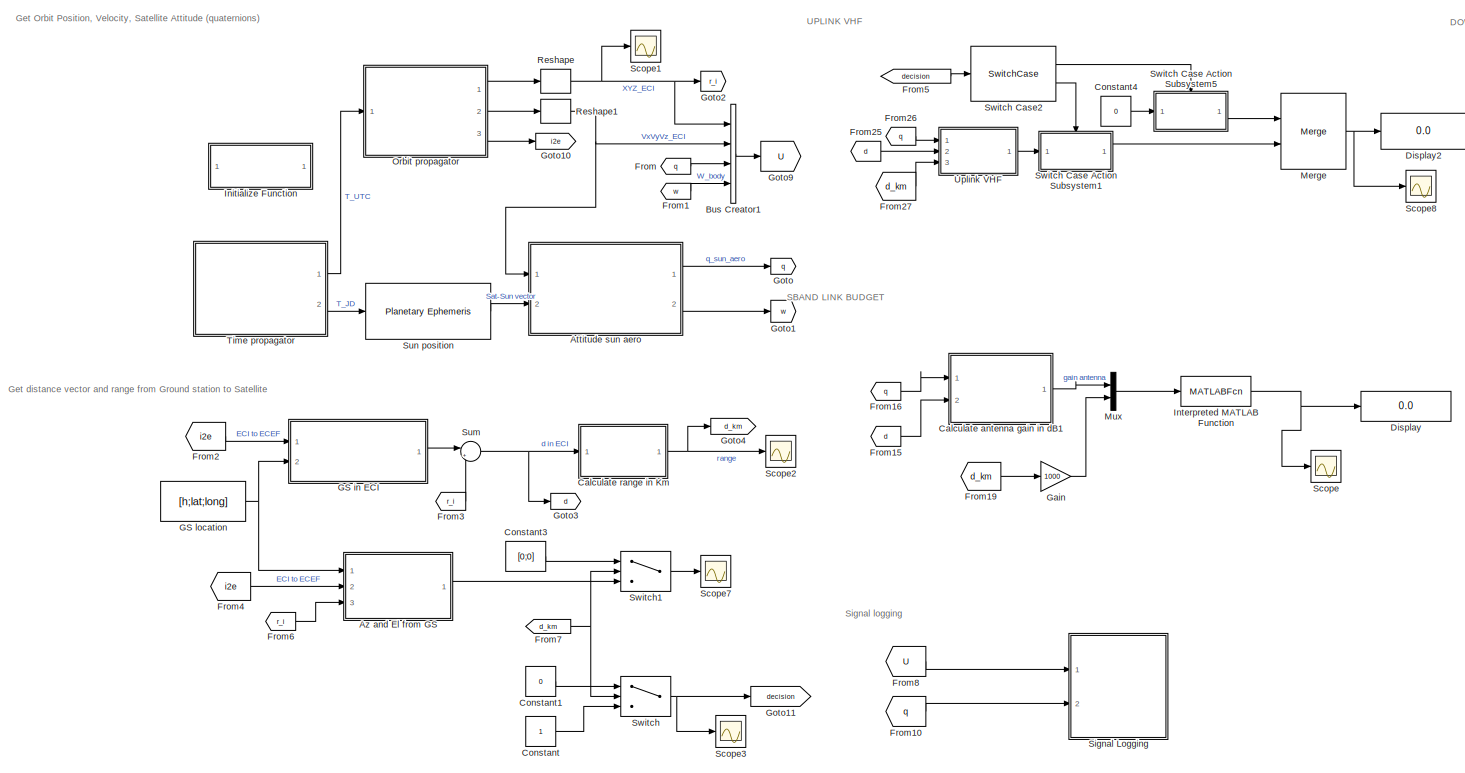
[diagram: root canvas - part 1/3, center side, full height]
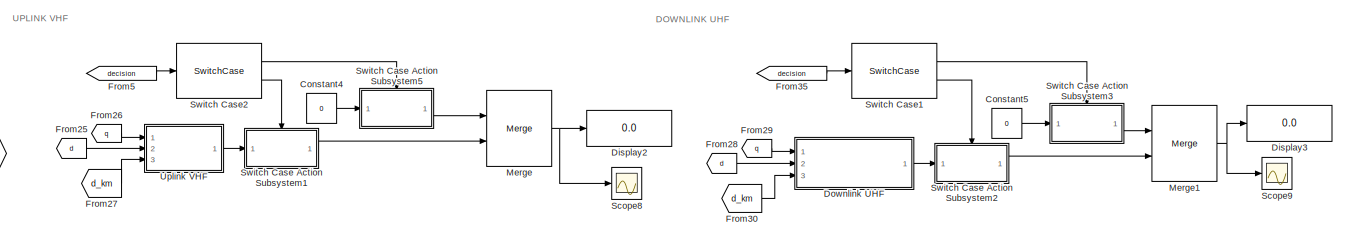
[diagram: root canvas - part 2/3, top right region]
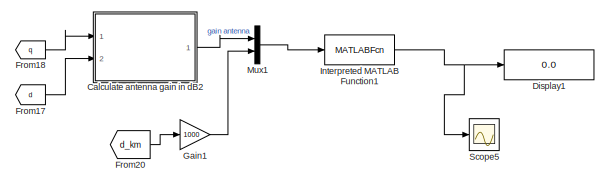
[diagram: root canvas - part 3/3, middle right region]
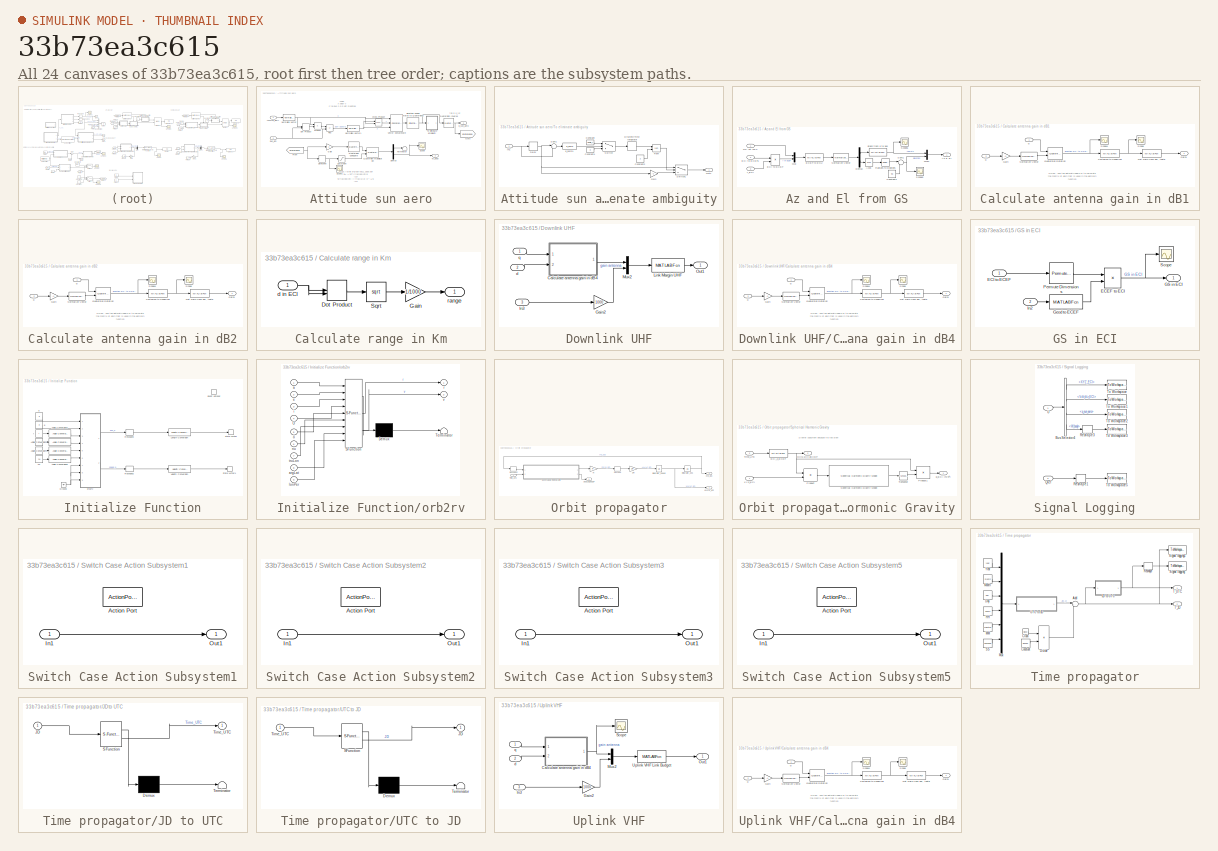
[diagram: thumbnail index - all 24 canvases of the model, root first then tree order]
MODEL slx_33b73ea3c615
KIND model
CONFIG AbsTol = auto
CONFIG EnableMultiTasking = off
CONFIG FixedStep = delta_t
CONFIG MaxStep = auto
CONFIG MinStep = auto
CONFIG RelTol = 1e-3
CONFIG SampleTimeConstraint = Unconstrained
CONFIG SolverName = FixedStepAuto
CONFIG StartTime = 0.0
CONFIG StopTime = tsimulation
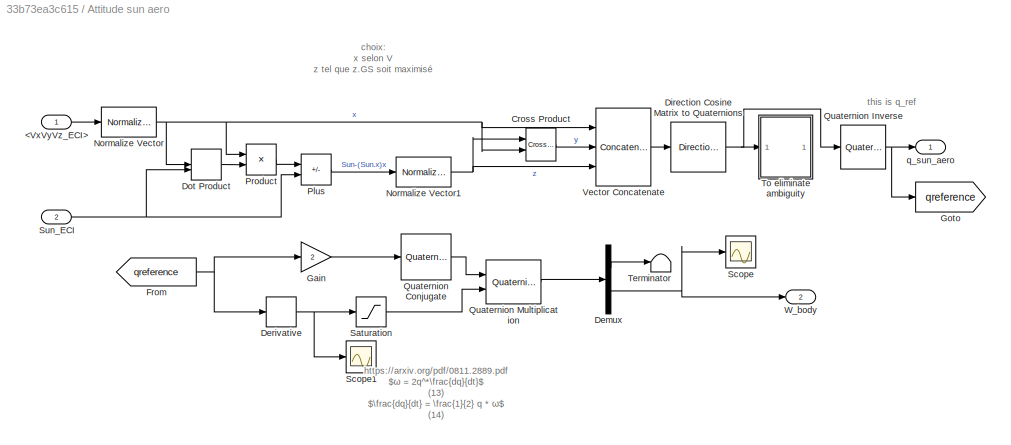
BLOCK [SubSystem] Attitude sun aero
  Ports = [2, 2]
  RequestExecContextInheritance = off
BLOCK [Inport] Attitude sun aero/<VxVyVz_ECI>
BLOCK [Reference] Attitude sun aero/Cross Product  REF=vrlib/Utilities/Cross Product
  Ports = [2, 1]
  SourceBlock = vrlib/Utilities/Cross Product
  SourceProductBaseCode = SL
  SourceType = Cross Product
BLOCK [Demux] Attitude sun aero/Demux
  Outputs = [1 3]
  Ports = [1, 2]
BLOCK [Derivative] Attitude sun aero/Derivative
BLOCK [Reference] Attitude sun aero/Direction Cosine Matrix to Quaternions  REF=sharedtransform/Direction Cosine Matrix 
to Quaternions
  Ports = [1, 1]
  SourceBlock = sharedtransform/Direction Cosine Matrix \nto Quaternions
  SourceProductBaseCode = AE,PW,DR,MT,UV,VE
  SourceType = DCM2Quaternion
BLOCK [DotProduct] Attitude sun aero/Dot Product
  OutDataTypeStr = Inherit: Inherit via internal rule
BLOCK [From] Attitude sun aero/From
  GotoTag = qreference
BLOCK [Gain] Attitude sun aero/Gain
  Gain = 2
BLOCK [Goto] Attitude sun aero/Goto
  GotoTag = qreference
BLOCK [Reference] Attitude sun aero/Normalize Vector  REF=vrlib/Utilities/Normalize Vector
  Ports = [1, 1]
  SourceBlock = vrlib/Utilities/Normalize Vector
  SourceProductBaseCode = SL
  SourceType = Normalize Vector
BLOCK [Reference] Attitude sun aero/Normalize Vector1  REF=vrlib/Utilities/Normalize Vector
  Ports = [1, 1]
  SourceBlock = vrlib/Utilities/Normalize Vector
  SourceProductBaseCode = SL
  SourceType = Normalize Vector
BLOCK [Sum] Attitude sun aero/Plus
  IconShape = rectangular
  Inputs = -+
  Ports = [2, 1]
BLOCK [Product] Attitude sun aero/Product
  Ports = [2, 1]
BLOCK [Reference] Attitude sun aero/Quaternion Conjugate  REF=aerolibutil/Quaternion
Conjugate
  Ports = [1, 1]
  SourceBlock = aerolibutil/Quaternion\nConjugate
  SourceProductBaseCode = AE
  SourceType = Quaternion Conjugate
BLOCK [Reference] Attitude sun aero/Quaternion Inverse  REF=aerolibutil/Quaternion
Inverse
  Ports = [1, 1]
  SourceBlock = aerolibutil/Quaternion\nInverse
  SourceProductBaseCode = AE
  SourceType = Quaternion Inverse
BLOCK [Reference] Attitude sun aero/Quaternion Multiplication  REF=aerolibutil/Quaternion
Multiplication
  Ports = [2, 1]
  SourceBlock = aerolibutil/Quaternion\nMultiplication
  SourceProductBaseCode = AE
  SourceType = Quaternion Multiplication
BLOCK [Saturate] Attitude sun aero/Saturation
  LowerLimit = -5.5e-4
  UpperLimit = 5.5e-4
BLOCK [Scope] Attitude sun aero/Scope
  Floating = off
  NumInputPorts = 1
  Ports = [1]
  ScopeSpecificationString = Simulink.scopes.TimeScopeBlockCfg('CurrentConfiguration', extmgr.ConfigurationSet(extmgr.Configuration('Core','General UI',true),extmgr.Configuration('Core','Source UI',true),extmgr.Configuration('Sources','WiredSimulink',true,'DataLoggingVariableName','ScopeData2'),extmgr.Configuration('Visuals','Time Domain',true,'SerializedDisplays',{struct('MinYLimReal','-0.0013','MaxYLimReal','0.00048','YLabe...<+1556ch>
BLOCK [Scope] Attitude sun aero/Scope1
  Floating = off
  NumInputPorts = 1
  Ports = [1]
  ScopeSpecificationString = Simulink.scopes.TimeScopeBlockCfg('CurrentConfiguration', extmgr.ConfigurationSet(extmgr.Configuration('Core','General UI',true),extmgr.Configuration('Core','Source UI',true),extmgr.Configuration('Sources','WiredSimulink',true,'DataLoggingVariableName','ScopeData2'),extmgr.Configuration('Visuals','Time Domain',true,'SerializedDisplays',{struct('MinYLimReal','-0.00053','MaxYLimReal','-0.00035','YLa...<+1586ch>
BLOCK [Inport] Attitude sun aero/Sun_ECI
  Port = 2
BLOCK [Terminator] Attitude sun aero/Terminator
BLOCK [SubSystem] Attitude sun aero/To eliminate ambiguity
  Commented = through
  Ports = [1, 1]
  RequestExecContextInheritance = off
BLOCK [Constant] Attitude sun aero/To eliminate ambiguity/Constant
  Value = 1/delta_t
BLOCK [Constant] Attitude sun aero/To eliminate ambiguity/Constant1
  Value = 0
BLOCK [Constant] Attitude sun aero/To eliminate ambiguity/Constant2
  Value = 2
BLOCK [Delay] Attitude sun aero/To eliminate ambiguity/Delay
  DelayLength = 1
  InputPortMap = u0
  Ports = [1, 1]
BLOCK [DiscreteIntegrator] Attitude sun aero/To eliminate ambiguity/Discrete-Time Integrator
  ICPrevOutput = DiscIntNeverNeededParam
  ICPrevScaledInput = DiscIntNeverNeededParam
  InitialConditionSetting = Auto
  Ports = [1, 1]
  SampleTime = -1
BLOCK [Gain] Attitude sun aero/To eliminate ambiguity/Gain
  Gain = -1
BLOCK [Inport] Attitude sun aero/To eliminate ambiguity/In1
BLOCK [Outport] Attitude sun aero/To eliminate ambiguity/Out1
BLOCK [Math] Attitude sun aero/To eliminate ambiguity/Rem
  Operator = rem
  Ports = [2, 1]
BLOCK [Sum] Attitude sun aero/To eliminate ambiguity/Sum1
  Inputs = |+-
  Ports = [2, 1]
BLOCK [Switch] Attitude sun aero/To eliminate ambiguity/Switch
  Criteria = u2 > Threshold
  InputSameDT = off
  SaturateOnIntegerOverflow = off
  Threshold = 1
BLOCK [Switch] Attitude sun aero/To eliminate ambiguity/Switch1
  Criteria = u2 > Threshold
  InputSameDT = off
  SaturateOnIntegerOverflow = off
  Threshold = 0.5
BLOCK [Reference] Attitude sun aero/To eliminate ambiguity/q_norm1  REF=My_library/q_norm
  Ports = [1, 1]
  SourceBlock = My_library/q_norm
  SourceProductName = My Library
BLOCK [Concatenate] Attitude sun aero/Vector Concatenate
  ConcatenateDimension = 2
  Mode = Multidimensional array
  NumInputs = 3
  Ports = [3, 1]
BLOCK [Outport] Attitude sun aero/W_body
  Port = 2
  VectorParamsAs1DForOutWhenUnconnected = off
BLOCK [Outport] Attitude sun aero/q_sun_aero
  VectorParamsAs1DForOutWhenUnconnected = off
BLOCK [SubSystem] Az and El from GS
  Ports = [3, 1]
  RequestExecContextInheritance = off
BLOCK [Trigonometry] Az and El from GS/Acos
  Operator = acos
  Ports = [1, 1]
BLOCK [Outport] Az and El from GS/Az & El
BLOCK [Constant] Az and El from GS/Constant2
  Value = 90
BLOCK [Demux] Az and El from GS/Demux
  Outputs = [2,1]
  Ports = [1, 2]
BLOCK [MATLABFcn] Az and El from GS/ECEF to ENU
  MATLABFcn = ecef_2_enu
  Output1D = off
  OutputDimensions = [3;1]
  Ports = [1, 1]
BLOCK [Product] Az and El from GS/ECI to ECEF
  Multiplication = Matrix(*)
  Ports = [2, 1]
BLOCK [Inport] Az and El from GS/ECI to ECEF1
  Port = 2
BLOCK [Inport] Az and El from GS/GS lat lon h
BLOCK [Mux] Az and El from GS/Mux
  DisplayOption = bar
  Inputs = 2
  Ports = [2, 1]
BLOCK [Mux] Az and El from GS/Mux1
  DisplayOption = bar
  Inputs = 2
  Ports = [2, 1]
BLOCK [Reference] Az and El from GS/Normalize Vector  REF=vrlib/Utilities/Normalize Vector
  Ports = [1, 1]
  SourceBlock = vrlib/Utilities/Normalize Vector
  SourceProductBaseCode = SL
  SourceType = Normalize Vector
BLOCK [Reference] Az and El from GS/Radians to Degrees  REF=simulink_extras/Transformations/Radians
to Degrees
  Ports = [1, 1]
  SourceBlock = simulink_extras/Transformations/Radians\nto Degrees
  SourceProductBaseCode = SL
  SourceType = RadiansToDegrees
BLOCK [Scope] Az and El from GS/Scope5
  Floating = off
  NumInputPorts = 1
  Ports = [1]
  ScopeSpecificationString = Simulink.scopes.TimeScopeBlockCfg('CurrentConfiguration', extmgr.ConfigurationSet(extmgr.Configuration('Core','General UI',true),extmgr.Configuration('Core','Source UI',true),extmgr.Configuration('Sources','WiredSimulink',true,'DataLoggingVariableName','ScopeData2'),extmgr.Configuration('Visuals','Time Domain',true,'SerializedDisplays',{struct('MinYLimReal','-104.6368','MaxYLimReal','45.61838','YL...<+1399ch>
BLOCK [Scope] Az and El from GS/Scope6
  Floating = off
  NumInputPorts = 1
  Ports = [1]
  ScopeSpecificationString = Simulink.scopes.TimeScopeBlockCfg('CurrentConfiguration', extmgr.ConfigurationSet(extmgr.Configuration('Core','General UI',true),extmgr.Configuration('Core','Source UI',true),extmgr.Configuration('Sources','WiredSimulink',true,'DataLoggingVariableName','ScopeData3'),extmgr.Configuration('Visuals','Time Domain',true,'SerializedDisplays',{struct('MinYLimReal','-44.99717','MaxYLimReal','404.99668','Y...<+1399ch>
BLOCK [Sum] Az and El from GS/Sum1
  Inputs = |-+
  Ports = [2, 1]
BLOCK [MATLABFcn] Az and El from GS/atan2 from 0 to 360
  MATLABFcn = atan2a
  NameLocation = top
  Ports = [1, 1]
BLOCK [Inport] Az and El from GS/r_ECI
  Port = 3
BLOCK [BusCreator] Bus Creator1
  DisplayOption = bar
  InheritFromInputs = on
  Inputs = 4
  Ports = [4, 1]
BLOCK [SubSystem] Calculate antenna gain in dB1
  Ports = [2, 1]
  RequestExecContextInheritance = off
BLOCK [MATLABFcn] Calculate antenna gain in dB1/Cartesian to Spherical
  MATLABFcn = cart2spherical
  Ports = [1, 1]
BLOCK [Gain] Calculate antenna gain in dB1/Gain
  Gain = -1
BLOCK [Outport] Calculate antenna gain in dB1/Gain1
BLOCK [MATLABFcn] Calculate antenna gain in dB1/Get Gain from phi, theta
  MATLABFcn = getGainvhf
  Ports = [1, 1]
BLOCK [Reference] Calculate antenna gain in dB1/Normalize Vector  REF=vrlib/Utilities/Normalize Vector
  Ports = [1, 1]
  SourceBlock = vrlib/Utilities/Normalize Vector
  SourceProductBaseCode = SL
  SourceType = Normalize Vector
BLOCK [Reference] Calculate antenna gain in dB1/Quaternion Rotation  REF=aerolibutil/Quaternion
Rotation
  Ports = [2, 1]
  SourceBlock = aerolibutil/Quaternion\nRotation
  SourceProductBaseCode = AE
  SourceType = Quaternion Rotation
BLOCK [Scope] Calculate antenna gain in dB1/Scope
  Floating = off
  NumInputPorts = 1
  Ports = [1]
  ScopeSpecificationString = Simulink.scopes.TimeScopeBlockCfg('CurrentConfiguration', extmgr.ConfigurationSet(extmgr.Configuration('Core','General UI',true),extmgr.Configuration('Core','Source UI',true),extmgr.Configuration('Sources','WiredSimulink',true,'DataLoggingVariableName','ScopeData1'),extmgr.Configuration('Visuals','Time Domain',true,'SerializedDisplays',{struct('MinYLimReal','-44.99179','MaxYLimReal','404.99208','Y...<+1490ch>  <repeated x3 — deduplicated; at blocks: Scope>
BLOCK [Scope] Calculate antenna gain in dB1/Scope4
  Floating = off
  NumInputPorts = 1
  Ports = [1]
  ScopeSpecificationString = Simulink.scopes.TimeScopeBlockCfg('CurrentConfiguration', extmgr.ConfigurationSet(extmgr.Configuration('Core','General UI',true),extmgr.Configuration('Core','Source UI',true),extmgr.Configuration('Sources','WiredSimulink',true,'DataLoggingVariableName','ScopeData1'),extmgr.Configuration('Visuals','Time Domain',true,'SerializedDisplays',{struct('MinYLimReal','-1.20919','MaxYLimReal','1.2419','YLabe...<+1689ch>  <repeated x4 — deduplicated; at blocks: Scope4>
BLOCK [Inport] Calculate antenna gain in dB1/d
  Port = 2
BLOCK [Inport] Calculate antenna gain in dB1/q
BLOCK [SubSystem] Calculate antenna gain in dB2
  Ports = [2, 1]
  RequestExecContextInheritance = off
BLOCK [MATLABFcn] Calculate antenna gain in dB2/Cartesian to Spherical
  MATLABFcn = cart2spherical
  Ports = [1, 1]
BLOCK [Gain] Calculate antenna gain in dB2/Gain
  Gain = -1
BLOCK [Outport] Calculate antenna gain in dB2/Gain1
BLOCK [MATLABFcn] Calculate antenna gain in dB2/Get Gain from phi, theta
  MATLABFcn = getGainuhf
  Ports = [1, 1]
BLOCK [Reference] Calculate antenna gain in dB2/Normalize Vector  REF=vrlib/Utilities/Normalize Vector
  Ports = [1, 1]
  SourceBlock = vrlib/Utilities/Normalize Vector
  SourceProductBaseCode = SL
  SourceType = Normalize Vector
BLOCK [Reference] Calculate antenna gain in dB2/Quaternion Rotation  REF=aerolibutil/Quaternion
Rotation
  Ports = [2, 1]
  SourceBlock = aerolibutil/Quaternion\nRotation
  SourceProductBaseCode = AE
  SourceType = Quaternion Rotation
BLOCK [Scope] Calculate antenna gain in dB2/Scope
  Floating = off
  NumInputPorts = 1
  Ports = [1]
BLOCK [Scope] Calculate antenna gain in dB2/Scope4
  Floating = off
  NumInputPorts = 1
  Ports = [1]
BLOCK [Inport] Calculate antenna gain in dB2/d
  Port = 2
BLOCK [Inport] Calculate antenna gain in dB2/q
BLOCK [SubSystem] Calculate range in Km
  Ports = [1, 1]
  RequestExecContextInheritance = off
BLOCK [DotProduct] Calculate range in Km/Dot Product
  OutDataTypeStr = Inherit: Inherit via internal rule
BLOCK [Gain] Calculate range in Km/Gain
  Gain = 1/1000
BLOCK [Sqrt] Calculate range in Km/Sqrt
BLOCK [Inport] Calculate range in Km/d in ECI
BLOCK [Outport] Calculate range in Km/range
BLOCK [Constant] Constant
BLOCK [Constant] Constant1
  Value = 0
BLOCK [Constant] Constant3
  Value = [0;0]
BLOCK [Constant] Constant4
  Value = 0
BLOCK [Constant] Constant5
  Value = 0
BLOCK [Display] Display
  Decimation = 1
  Ports = [1]
BLOCK [Display] Display1
  Decimation = 1
  Ports = [1]
BLOCK [Display] Display2
  Decimation = 1
  Ports = [1]
BLOCK [Display] Display3
  Decimation = 1
  Ports = [1]
BLOCK [SubSystem] Downlink UHF
  Ports = [3, 1]
  RequestExecContextInheritance = off
BLOCK [SubSystem] Downlink UHF/Calculate antenna gain in dB4
  Ports = [2, 1]
  RequestExecContextInheritance = off
BLOCK [MATLABFcn] Downlink UHF/Calculate antenna gain in dB4/Cartesian to Spherical
  MATLABFcn = cart2spherical
  Ports = [1, 1]
BLOCK [Gain] Downlink UHF/Calculate antenna gain in dB4/Gain
  Gain = -1
BLOCK [Outport] Downlink UHF/Calculate antenna gain in dB4/Gain1
BLOCK [MATLABFcn] Downlink UHF/Calculate antenna gain in dB4/Get Gain from phi, theta
  MATLABFcn = getGainuhf
  Ports = [1, 1]
BLOCK [Reference] Downlink UHF/Calculate antenna gain in dB4/Normalize Vector  REF=vrlib/Utilities/Normalize Vector
  Ports = [1, 1]
  SourceBlock = vrlib/Utilities/Normalize Vector
  SourceProductBaseCode = SL
  SourceType = Normalize Vector
BLOCK [Reference] Downlink UHF/Calculate antenna gain in dB4/Quaternion Rotation  REF=aerolibutil/Quaternion
Rotation
  Ports = [2, 1]
  SourceBlock = aerolibutil/Quaternion\nRotation
  SourceProductBaseCode = AE
  SourceType = Quaternion Rotation
BLOCK [Scope] Downlink UHF/Calculate antenna gain in dB4/Scope
  Floating = off
  NumInputPorts = 1
  Ports = [1]
BLOCK [Scope] Downlink UHF/Calculate antenna gain in dB4/Scope4
  Floating = off
  NumInputPorts = 1
  Ports = [1]
BLOCK [Inport] Downlink UHF/Calculate antenna gain in dB4/d
  Port = 2
BLOCK [Inport] Downlink UHF/Calculate antenna gain in dB4/q
BLOCK [Gain] Downlink UHF/Gain2
  Gain = 1000
BLOCK [Inport] Downlink UHF/In3
  Port = 3
BLOCK [MATLABFcn] Downlink UHF/Link Margin UHF
  MATLABFcn = linkbudgetdownlinkuhf
  OutputDimensions = 1
  Ports = [1, 1]
BLOCK [Mux] Downlink UHF/Mux2
  DisplayOption = bar
  Inputs = 2
  Ports = [2, 1]
BLOCK [Outport] Downlink UHF/Out1
BLOCK [Inport] Downlink UHF/d
  Port = 2
BLOCK [Inport] Downlink UHF/q
BLOCK [From] From
  GotoTag = q
BLOCK [From] From1
  GotoTag = w
BLOCK [From] From10
  GotoTag = q
BLOCK [From] From15
  GotoTag = d
BLOCK [From] From16
  GotoTag = q
BLOCK [From] From17
  GotoTag = d
BLOCK [From] From18
  GotoTag = q
BLOCK [From] From19
  GotoTag = d_km
BLOCK [From] From2
  GotoTag = i2e
BLOCK [From] From20
  GotoTag = d_km
BLOCK [From] From25
  GotoTag = d
BLOCK [From] From26
  GotoTag = q
BLOCK [From] From27
  GotoTag = d_km
BLOCK [From] From28
  GotoTag = d
BLOCK [From] From29
  GotoTag = q
BLOCK [From] From3
  GotoTag = r_i
BLOCK [From] From30
  GotoTag = d_km
BLOCK [From] From35
  GotoTag = decision
BLOCK [From] From4
  GotoTag = i2e
BLOCK [From] From5
  GotoTag = decision
BLOCK [From] From6
  GotoTag = r_i
BLOCK [From] From7
  GotoTag = d_km
BLOCK [From] From8
  GotoTag = U
BLOCK [SubSystem] GS in ECI
  Ports = [2, 1]
  RequestExecContextInheritance = off
BLOCK [Product] GS in ECI/ECEF to ECI
  Multiplication = Matrix(*)
  Ports = [2, 1]
BLOCK [Inport] GS in ECI/ECI to ECEF
BLOCK [Outport] GS in ECI/GS in ECI
BLOCK [MATLABFcn] GS in ECI/Geod to ECEF
  MATLABFcn = geod_2_ecef
  Output1D = off
  OutputDimensions = [3;1]
  Ports = [1, 1]
BLOCK [Inport] GS in ECI/In2
  Port = 2
BLOCK [PermuteDimensions] GS in ECI/Permute Dimensions
BLOCK [Scope] GS in ECI/Scope
  Floating = off
  NumInputPorts = 1
  Ports = [1]
  ScopeSpecificationString = Simulink.scopes.TimeScopeBlockCfg('CurrentConfiguration', extmgr.ConfigurationSet(extmgr.Configuration('Core','General UI',true),extmgr.Configuration('Core','Source UI',true),extmgr.Configuration('Sources','WiredSimulink',true,'DataLoggingVariableName','ScopeData1'),extmgr.Configuration('Visuals','Time Domain',true,'SerializedDisplays',{struct('MinYLimReal','-5751689.17563','MaxYLimReal','5501459....<+1494ch>
BLOCK [Constant] GS location
  Value = [h;lat;long]
BLOCK [Gain] Gain
  Gain = 1000
BLOCK [Gain] Gain1
  Gain = 1000
BLOCK [Goto] Goto
  GotoTag = q
BLOCK [Goto] Goto1
  GotoTag = w
BLOCK [Goto] Goto10
  GotoTag = i2e
BLOCK [Goto] Goto11
  GotoTag = decision
BLOCK [Goto] Goto2
  GotoTag = r_i
BLOCK [Goto] Goto3
  GotoTag = d
BLOCK [Goto] Goto4
  GotoTag = d_km
BLOCK [Goto] Goto9
  GotoTag = U
BLOCK [SubSystem] Initialize Function
  Ports = []
  RequestExecContextInheritance = off
  TreatAsAtomicUnit = on
BLOCK [Reference] Initialize Function/Angle Conversion2  REF=aerolibconvert2/Angle Conversion
  Ports = [1, 1]
  SourceBlock = aerolibconvert2/Angle Conversion
  SourceProductBaseCode = AE
  SourceType = Angle Conversion
BLOCK [Reference] Initialize Function/Angle Conversion3  REF=aerolibconvert2/Angle Conversion
  Ports = [1, 1]
  SourceBlock = aerolibconvert2/Angle Conversion
  SourceProductBaseCode = AE
  SourceType = Angle Conversion
BLOCK [Reference] Initialize Function/Angle Conversion4  REF=aerolibconvert2/Angle Conversion
  Ports = [1, 1]
  SourceBlock = aerolibconvert2/Angle Conversion
  SourceProductBaseCode = AE
  SourceType = Angle Conversion
BLOCK [Reference] Initialize Function/Angle Conversion5  REF=aerolibconvert2/Angle Conversion
  Ports = [1, 1]
  SourceBlock = aerolibconvert2/Angle Conversion
  SourceProductBaseCode = AE
  SourceType = Angle Conversion
BLOCK [EventListener] Initialize Function/Event Listener
  DisableCoverage = on
  EventName = reset
BLOCK [Ground] Initialize Function/Ground
BLOCK [Reference] Initialize Function/Length Conversion  REF=aerolibconvert2/Length Conversion
  Ports = [1, 1]
  SourceBlock = aerolibconvert2/Length Conversion
  SourceProductBaseCode = AE
  SourceType = Length Conversion
BLOCK [Constant] Initialize Function/O
  Value = O
BLOCK [Reshape] Initialize Function/Reshape2
  OutputDimensionality = Column vector (2-D)
  Ports = [1, 1]
BLOCK [Reshape] Initialize Function/Reshape3
  OutputDimensionality = Column vector (2-D)
  Ports = [1, 1]
BLOCK [StateWriter] Initialize Function/State Writer
  StateOwnerBlock = ../../Orbit propagator/Integrator_pos
BLOCK [StateWriter] Initialize Function/State Writer1
  StateOwnerBlock = ../../Orbit propagator/Integrator_speed
BLOCK [Reference] Initialize Function/Velocity Conversion  REF=aerolibconvert2/Velocity Conversion
  Ports = [1, 1]
  SourceBlock = aerolibconvert2/Velocity Conversion
  SourceProductBaseCode = AE
  SourceType = Velocity Conversion
BLOCK [Constant] Initialize Function/a
  Value = a
BLOCK [Constant] Initialize Function/e
  Value = e
BLOCK [Constant] Initialize Function/i
  Value = i
BLOCK [Constant] Initialize Function/nu
  Value = nu
BLOCK [Constant] Initialize Function/o
  Value = o
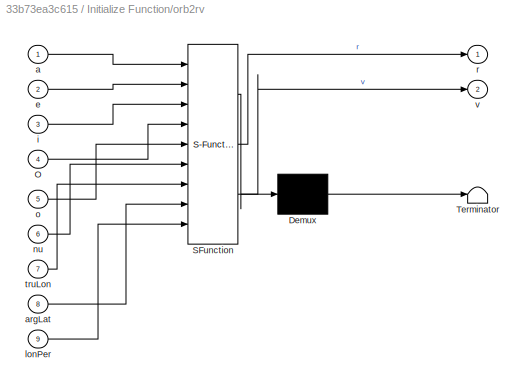
BLOCK [SubSystem] Initialize Function/orb2rv
  ErrorFcn = Stateflow.Translate.translate
  PermitHierarchicalResolution = ExplicitOnly
  Ports = [9, 2]
  RequestExecContextInheritance = off
  SFBlockType = MATLAB Function
  TreatAsAtomicUnit = on
BLOCK [Demux] Initialize Function/orb2rv/ Demux 
  Outputs = 1
  Ports = [1, 1]
BLOCK [S-Function] Initialize Function/orb2rv/ SFunction 
  EnableBusSupport = on
  FunctionName = sf_sfun
  PortCounts = [9 3]
  Ports = [9, 3]
  SFcnIsStateOwnerBlock = off
  SFunctionDeploymentMode = off
  Tag = Stateflow S-Function 5
BLOCK [Terminator] Initialize Function/orb2rv/ Terminator 
BLOCK [Inport] Initialize Function/orb2rv/O
  Port = 4
BLOCK [Inport] Initialize Function/orb2rv/a
BLOCK [Inport] Initialize Function/orb2rv/argLat
  Port = 8
BLOCK [Inport] Initialize Function/orb2rv/e
  Port = 2
BLOCK [Inport] Initialize Function/orb2rv/i
  Port = 3
BLOCK [Inport] Initialize Function/orb2rv/lonPer
  Port = 9
BLOCK [Inport] Initialize Function/orb2rv/nu
  Port = 6
BLOCK [Inport] Initialize Function/orb2rv/o
  Port = 5
BLOCK [Outport] Initialize Function/orb2rv/r
  VectorParamsAs1DForOutWhenUnconnected = off
BLOCK [Inport] Initialize Function/orb2rv/truLon
  Port = 7
BLOCK [Outport] Initialize Function/orb2rv/v
  Port = 2
  VectorParamsAs1DForOutWhenUnconnected = off
BLOCK [MATLABFcn] Interpreted MATLAB Function
  MATLABFcn = linkbudgetuplinksband
  OutputDimensions = 1
  Ports = [1, 1]
BLOCK [MATLABFcn] Interpreted MATLAB Function1
  MATLABFcn = linkbudgetdownlinksband
  OutputDimensions = 1
  Ports = [1, 1]
BLOCK [Merge] Merge
  Ports = [2, 1]
BLOCK [Merge] Merge1
  Ports = [2, 1]
BLOCK [Mux] Mux
  DisplayOption = bar
  Inputs = 2
  Ports = [2, 1]
BLOCK [Mux] Mux1
  DisplayOption = bar
  Inputs = 2
  Ports = [2, 1]
BLOCK [SubSystem] Orbit propagator
  Ports = [1, 3]
  RequestExecContextInheritance = off
BLOCK [Gain] Orbit propagator/1//m
  Gain = 1/m
BLOCK [Outport] Orbit propagator/DCM_ECI2ECEF
  Port = 3
BLOCK [Integrator] Orbit propagator/Integrator_pos
  Ports = [1, 1]
BLOCK [Integrator] Orbit propagator/Integrator_speed
  Ports = [1, 1]
BLOCK [Reshape] Orbit propagator/Reshape
  OutputDimensionality = Column vector (2-D)
  Ports = [1, 1]
BLOCK [Reshape] Orbit propagator/Reshape2
  OutputDimensionality = Column vector (2-D)
  Ports = [1, 1]
BLOCK [SubSystem] Orbit propagator/Spherical Harmonic Gravity
  Ports = [2, 2]
  RequestExecContextInheritance = off
  SystemSampleTime = 1
  TreatAsAtomicUnit = on
BLOCK [Outport] Orbit propagator/Spherical Harmonic Gravity/DCM_ECI2ECEF
  Port = 2
BLOCK [MATLABFcn] Orbit propagator/Spherical Harmonic Gravity/ECI_2_ECEF
  MATLABFcn = eci2ecef
  Output1D = off
  OutputDimensions = [3,3]
  Ports = [1, 1]
BLOCK [Product] Orbit propagator/Spherical Harmonic Gravity/Product
  Multiplication = Matrix(*)
  Ports = [2, 1]
BLOCK [Product] Orbit propagator/Spherical Harmonic Gravity/Product1
  Inputs = /*
  Multiplication = Matrix(*)
  Ports = [2, 1]
BLOCK [Reference] Orbit propagator/Spherical Harmonic Gravity/Spherical Harmonic Gravity Model  REF=aerolibgravity2/Spherical Harmonic Gravity Model
  Ports = [1, 1]
  SourceBlock = aerolibgravity2/Spherical Harmonic Gravity Model
  SourceProductBaseCode = AE
  SourceType = Spherical Harmonic Gravity Model
BLOCK [Inport] Orbit propagator/Spherical Harmonic Gravity/Time_UTC
  Port = 2
BLOCK [Math] Orbit propagator/Spherical Harmonic Gravity/Transpose
  Operator = transpose
  Ports = [1, 1]
  SignedPower = on
BLOCK [Inport] Orbit propagator/Spherical Harmonic Gravity/XYZ_ECI
BLOCK [Outport] Orbit propagator/Spherical Harmonic Gravity/g_ECI (m//s²)
BLOCK [Inport] Orbit propagator/Time_UTC 
BLOCK [Outport] Orbit propagator/VxVyVz_ECI
  Port = 2
BLOCK [Outport] Orbit propagator/XYZ_ECI
  VectorParamsAs1DForOutWhenUnconnected = off
BLOCK [Gain] Orbit propagator/m
  Gain = m
BLOCK [Reshape] Reshape
  Ports = [1, 1]
BLOCK [Reshape] Reshape1
  Ports = [1, 1]
BLOCK [Scope] Scope
  Floating = off
  NumInputPorts = 1
  Ports = [1]
  ScopeSpecificationString = Simulink.scopes.TimeScopeBlockCfg('CurrentConfiguration', extmgr.ConfigurationSet(extmgr.Configuration('Core','General UI',true),extmgr.Configuration('Core','Source UI',true),extmgr.Configuration('Sources','WiredSimulink',true,'DataLoggingVariableName','ScopeData1'),extmgr.Configuration('Visuals','Time Domain',true,'SerializedDisplays',{struct('MinYLimReal','-34.66174','MaxYLimReal','7.96637','YLa...<+1449ch>
BLOCK [Scope] Scope1
  Floating = off
  NumInputPorts = 1
  Ports = [1]
  ScopeSpecificationString = Simulink.scopes.TimeScopeBlockCfg('CurrentConfiguration', extmgr.ConfigurationSet(extmgr.Configuration('Core','General UI',true),extmgr.Configuration('Core','Source UI',true),extmgr.Configuration('Sources','WiredSimulink',true,'DataLoggingVariableName','ScopeData2'),extmgr.Configuration('Visuals','Time Domain',true,'SerializedDisplays',{struct('MinYLimReal','-7832359.43944','MaxYLimReal','7880788....<+1538ch>
BLOCK [Scope] Scope2
  Floating = off
  NumInputPorts = 1
  Ports = [1]
  ScopeSpecificationString = Simulink.scopes.TimeScopeBlockCfg('CurrentConfiguration', extmgr.ConfigurationSet(extmgr.Configuration('Core','General UI',true),extmgr.Configuration('Core','Source UI',true),extmgr.Configuration('Sources','WiredSimulink',true,'DataLoggingVariableName','ScopeData1'),extmgr.Configuration('Visuals','Time Domain',true,'SerializedDisplays',{struct('MinYLimReal','-907.22225','MaxYLimReal','14662.47484'...<+1495ch>
BLOCK [Scope] Scope3
  Floating = off
  NumInputPorts = 1
  Ports = [1]
  ScopeSpecificationString = Simulink.scopes.TimeScopeBlockCfg('CurrentConfiguration', extmgr.ConfigurationSet(extmgr.Configuration('Core','General UI',true),extmgr.Configuration('Core','Source UI',true),extmgr.Configuration('Sources','WiredSimulink',true,'DataLoggingVariableName','ScopeData1'),extmgr.Configuration('Visuals','Time Domain',true,'SerializedDisplays',{struct('MinYLimReal','-0.125','MaxYLimReal','1.125','YLabelRe...<+1459ch>
BLOCK [Scope] Scope5
  Floating = off
  NumInputPorts = 1
  Ports = [1]
  ScopeSpecificationString = Simulink.scopes.TimeScopeBlockCfg('CurrentConfiguration', extmgr.ConfigurationSet(extmgr.Configuration('Core','General UI',true),extmgr.Configuration('Core','Source UI',true),extmgr.Configuration('Sources','WiredSimulink',true,'DataLoggingVariableName','ScopeData3'),extmgr.Configuration('Visuals','Time Domain',true,'SerializedDisplays',{struct('MinYLimReal','-13.51241','MaxYLimReal','25.69699','YL...<+1448ch>
BLOCK [Scope] Scope7
  Floating = off
  NumInputPorts = 1
  Ports = [1]
  ScopeSpecificationString = Simulink.scopes.TimeScopeBlockCfg('CurrentConfiguration', extmgr.ConfigurationSet(extmgr.Configuration('Core','General UI',true),extmgr.Configuration('Core','Source UI',true),extmgr.Configuration('Sources','WiredSimulink',true,'DataLoggingVariableName','ScopeData4'),extmgr.Configuration('Visuals','Time Domain',true,'SerializedDisplays',{struct('MinYLimReal','-23.33113','MaxYLimReal','209.98021','Y...<+1556ch>
BLOCK [Scope] Scope8
  Floating = off
  NumInputPorts = 1
  Ports = [1]
  ScopeSpecificationString = Simulink.scopes.TimeScopeBlockCfg('CurrentConfiguration', extmgr.ConfigurationSet(extmgr.Configuration('Core','General UI',true),extmgr.Configuration('Core','Source UI',true),extmgr.Configuration('Sources','WiredSimulink',true,'DataLoggingVariableName','ScopeData1'),extmgr.Configuration('Visuals','Time Domain',true,'SerializedDisplays',{struct('MinYLimReal','-4.03066','MaxYLimReal','36.27598','YLa...<+1448ch>
BLOCK [Scope] Scope9
  Floating = off
  NumInputPorts = 1
  Ports = [1]
  ScopeSpecificationString = Simulink.scopes.TimeScopeBlockCfg('CurrentConfiguration', extmgr.ConfigurationSet(extmgr.Configuration('Core','General UI',true),extmgr.Configuration('Core','Source UI',true),extmgr.Configuration('Sources','WiredSimulink',true,'DataLoggingVariableName','ScopeData3'),extmgr.Configuration('Visuals','Time Domain',true,'SerializedDisplays',{struct('MinYLimReal','-5.65754','MaxYLimReal','50.91788','YLa...<+1433ch>
BLOCK [SubSystem] Signal Logging
  Ports = [2]
  RequestExecContextInheritance = off
BLOCK [BusSelector] Signal Logging/Bus Selector4
  OutputSignals = XYZ_ECI,VxVyVz_ECI,q_sun_aero,W_body
  Ports = [1, 4]
BLOCK [Inport] Signal Logging/Qref
  Port = 2
BLOCK [Reshape] Signal Logging/Reshape1
  Ports = [1, 1]
BLOCK [Reshape] Signal Logging/Reshape3
  Ports = [1, 1]
BLOCK [ToWorkspace] Signal Logging/To Workspace
  FixptAsFi = on
  MaxDataPoints = inf
  Ports = [1]
  SampleTime = 1
  Save2DSignal = 2-D array (concatenate along first dimension)
  SaveFormat = Timeseries
  VariableName = sat_pos
BLOCK [ToWorkspace] Signal Logging/To Workspace1
  FixptAsFi = on
  MaxDataPoints = inf
  Ports = [1]
  SampleTime = 1
  Save2DSignal = 2-D array (concatenate along first dimension)
  SaveFormat = Timeseries
  VariableName = sat_speed
BLOCK [ToWorkspace] Signal Logging/To Workspace2
  FixptAsFi = on
  MaxDataPoints = inf
  Ports = [1]
  SampleTime = 1
  Save2DSignal = 2-D array (concatenate along first dimension)
  SaveFormat = Timeseries
  VariableName = sat_Q
BLOCK [ToWorkspace] Signal Logging/To Workspace3
  FixptAsFi = on
  MaxDataPoints = inf
  Ports = [1]
  SampleTime = 1
  Save2DSignal = 2-D array (concatenate along first dimension)
  SaveFormat = Timeseries
  VariableName = sat_omega
BLOCK [ToWorkspace] Signal Logging/To Workspace5
  FixptAsFi = on
  MaxDataPoints = inf
  Ports = [1]
  SampleTime = 1
  Save2DSignal = 2-D array (concatenate along first dimension)
  SaveFormat = Timeseries
  VariableName = sat_Qc
BLOCK [Inport] Signal Logging/U
BLOCK [Sum] Sum
  Inputs = |+-
  Ports = [2, 1]
BLOCK [Reference] Sun position  REF=aerolibcelestial/Planetary Ephemeris
  Ports = [1, 1]
  SourceBlock = aerolibcelestial/Planetary Ephemeris
  SourceProductBaseCode = AE
  SourceType = PlanetaryEphemeris
BLOCK [Switch] Switch
  Criteria = u2 > Threshold
  InputSameDT = off
  SaturateOnIntegerOverflow = off
  Threshold = d_0
BLOCK [SubSystem] Switch Case Action Subsystem1
  Ports = [1, 1, 0, 0, 0, 0, 0, 1]
  RequestExecContextInheritance = off
  TreatAsAtomicUnit = on
BLOCK [ActionPort] Switch Case Action Subsystem1/Action Port
  ActionPortLabel = case [ 1 ]:
BLOCK [Inport] Switch Case Action Subsystem1/In1
BLOCK [Outport] Switch Case Action Subsystem1/Out1
  VectorParamsAs1DForOutWhenUnconnected = off
BLOCK [SubSystem] Switch Case Action Subsystem2
  Ports = [1, 1, 0, 0, 0, 0, 0, 1]
  RequestExecContextInheritance = off
  TreatAsAtomicUnit = on
BLOCK [ActionPort] Switch Case Action Subsystem2/Action Port
  ActionPortLabel = case [ 1 ]:
BLOCK [Inport] Switch Case Action Subsystem2/In1
BLOCK [Outport] Switch Case Action Subsystem2/Out1
  VectorParamsAs1DForOutWhenUnconnected = off
BLOCK [SubSystem] Switch Case Action Subsystem3
  Ports = [1, 1, 0, 0, 0, 0, 0, 1]
  RequestExecContextInheritance = off
  TreatAsAtomicUnit = on
BLOCK [ActionPort] Switch Case Action Subsystem3/Action Port
  ActionPortLabel = case [ 0 ]:
BLOCK [Inport] Switch Case Action Subsystem3/In1
BLOCK [Outport] Switch Case Action Subsystem3/Out1
  VectorParamsAs1DForOutWhenUnconnected = off
BLOCK [SubSystem] Switch Case Action Subsystem5
  Ports = [1, 1, 0, 0, 0, 0, 0, 1]
  RequestExecContextInheritance = off
  TreatAsAtomicUnit = on
BLOCK [ActionPort] Switch Case Action Subsystem5/Action Port
  ActionPortLabel = case [ 0 ]:
BLOCK [Inport] Switch Case Action Subsystem5/In1
BLOCK [Outport] Switch Case Action Subsystem5/Out1
  VectorParamsAs1DForOutWhenUnconnected = off
BLOCK [SwitchCase] Switch Case1
  CaseConditions = {0, 1}
  Ports = [1, 2]
  ShowDefaultCase = off
BLOCK [SwitchCase] Switch Case2
  CaseConditions = {0, 1}
  Ports = [1, 2]
  ShowDefaultCase = off
BLOCK [Switch] Switch1
  Criteria = u2 > Threshold
  InputSameDT = off
  SaturateOnIntegerOverflow = off
  Threshold = d_0
BLOCK [SubSystem] Time propagator
  Ports = [0, 2]
  RequestExecContextInheritance = off
BLOCK [Sum] Time propagator/Add
  Inputs = |++
  Ports = [2, 1]
BLOCK [Clock] Time propagator/Clock
BLOCK [Constant] Time propagator/Constant
  Value = 86400
BLOCK [Constant] Time propagator/Day
  Value = day
BLOCK [Product] Time propagator/Divide
  Inputs = */
  Ports = [2, 1]
BLOCK [Constant] Time propagator/HH
  Value = hours
BLOCK [SubSystem] Time propagator/JD to UTC
  ErrorFcn = Stateflow.Translate.translate
  PermitHierarchicalResolution = ExplicitOnly
  Ports = [1, 1]
  RequestExecContextInheritance = off
  SFBlockType = MATLAB Function
  TreatAsAtomicUnit = on
BLOCK [Demux] Time propagator/JD to UTC/ Demux 
  Outputs = 1
  Ports = [1, 1]
BLOCK [S-Function] Time propagator/JD to UTC/ SFunction 
  EnableBusSupport = on
  FunctionName = sf_sfun
  PortCounts = [1 2]
  Ports = [1, 2]
  SFcnIsStateOwnerBlock = off
  SFunctionDeploymentMode = off
  Tag = Stateflow S-Function 1
BLOCK [Terminator] Time propagator/JD to UTC/ Terminator 
BLOCK [Inport] Time propagator/JD to UTC/JD
BLOCK [Outport] Time propagator/JD to UTC/Time_UTC
  VectorParamsAs1DForOutWhenUnconnected = off
BLOCK [Constant] Time propagator/MM
  Value = minutes
BLOCK [Constant] Time propagator/Month
  Value = month
BLOCK [Mux] Time propagator/Mux
  DisplayOption = bar
  Inputs = 6
  Ports = [6, 1]
BLOCK [Reshape] Time propagator/Reshape
  Ports = [1, 1]
BLOCK [Constant] Time propagator/SS
  Value = seconds
BLOCK [ToWorkspace] Time propagator/Signal logging
  FixptAsFi = on
  MaxDataPoints = inf
  Ports = [1]
  SampleTime = 1
  Save2DSignal = 2-D array (concatenate along first dimension)
  SaveFormat = Timeseries
  VariableName = T_UTC
BLOCK [ToWorkspace] Time propagator/Signal logging1
  FixptAsFi = on
  MaxDataPoints = inf
  Ports = [1]
  SampleTime = 1
  Save2DSignal = 2-D array (concatenate along first dimension)
  SaveFormat = Timeseries
  VariableName = T_JD
BLOCK [Outport] Time propagator/T_JD
  Port = 2
  VectorParamsAs1DForOutWhenUnconnected = off
BLOCK [Outport] Time propagator/T_UTC
  VectorParamsAs1DForOutWhenUnconnected = off
BLOCK [SubSystem] Time propagator/UTC to JD
  ErrorFcn = Stateflow.Translate.translate
  PermitHierarchicalResolution = ExplicitOnly
  Ports = [1, 1]
  RequestExecContextInheritance = off
  SFBlockType = MATLAB Function
  TreatAsAtomicUnit = on
BLOCK [Demux] Time propagator/UTC to JD/ Demux 
  Outputs = 1
  Ports = [1, 1]
BLOCK [S-Function] Time propagator/UTC to JD/ SFunction 
  EnableBusSupport = on
  FunctionName = sf_sfun
  PortCounts = [1 2]
  Ports = [1, 2]
  SFcnIsStateOwnerBlock = off
  SFunctionDeploymentMode = off
  Tag = Stateflow S-Function 2
BLOCK [Terminator] Time propagator/UTC to JD/ Terminator 
BLOCK [Outport] Time propagator/UTC to JD/JD
  VectorParamsAs1DForOutWhenUnconnected = off
BLOCK [Inport] Time propagator/UTC to JD/Time_UTC
BLOCK [Constant] Time propagator/Year
  Value = year
BLOCK [SubSystem] Uplink VHF
  Ports = [3, 1]
  RequestExecContextInheritance = off
BLOCK [SubSystem] Uplink VHF/Calculate antenna gain in dB4
  Ports = [2, 1]
  RequestExecContextInheritance = off
BLOCK [MATLABFcn] Uplink VHF/Calculate antenna gain in dB4/Cartesian to Spherical
  MATLABFcn = cart2spherical
  Ports = [1, 1]
BLOCK [Gain] Uplink VHF/Calculate antenna gain in dB4/Gain
  Gain = -1
BLOCK [Outport] Uplink VHF/Calculate antenna gain in dB4/Gain1
BLOCK [MATLABFcn] Uplink VHF/Calculate antenna gain in dB4/Get Gain from phi, theta
  MATLABFcn = getGainvhf
  Ports = [1, 1]
BLOCK [Reference] Uplink VHF/Calculate antenna gain in dB4/Normalize Vector  REF=vrlib/Utilities/Normalize Vector
  Ports = [1, 1]
  SourceBlock = vrlib/Utilities/Normalize Vector
  SourceProductBaseCode = SL
  SourceType = Normalize Vector
BLOCK [Reference] Uplink VHF/Calculate antenna gain in dB4/Quaternion Rotation  REF=aerolibutil/Quaternion
Rotation
  Ports = [2, 1]
  SourceBlock = aerolibutil/Quaternion\nRotation
  SourceProductBaseCode = AE
  SourceType = Quaternion Rotation
BLOCK [Scope] Uplink VHF/Calculate antenna gain in dB4/Scope
  Floating = off
  NumInputPorts = 1
  Ports = [1]
  ScopeSpecificationString = Simulink.scopes.TimeScopeBlockCfg('CurrentConfiguration', extmgr.ConfigurationSet(extmgr.Configuration('Core','General UI',true),extmgr.Configuration('Core','Source UI',true),extmgr.Configuration('Sources','WiredSimulink',true,'DataLoggingVariableName','ScopeData1'),extmgr.Configuration('Visuals','Time Domain',true,'SerializedDisplays',{struct('MinYLimReal','-44.92966','MaxYLimReal','404.96275','Y...<+1501ch>
BLOCK [Scope] Uplink VHF/Calculate antenna gain in dB4/Scope4
  Floating = off
  NumInputPorts = 1
  Ports = [1]
BLOCK [Inport] Uplink VHF/Calculate antenna gain in dB4/d
  Port = 2
BLOCK [Inport] Uplink VHF/Calculate antenna gain in dB4/q
BLOCK [Gain] Uplink VHF/Gain2
  Gain = 1000
BLOCK [Inport] Uplink VHF/In3
  Port = 3
BLOCK [Mux] Uplink VHF/Mux2
  DisplayOption = bar
  Inputs = 2
  Ports = [2, 1]
BLOCK [Outport] Uplink VHF/Out1
BLOCK [Scope] Uplink VHF/Scope
  Floating = off
  NumInputPorts = 1
  Ports = [1]
  ScopeSpecificationString = Simulink.scopes.TimeScopeBlockCfg('CurrentConfiguration', extmgr.ConfigurationSet(extmgr.Configuration('Core','General UI',true),extmgr.Configuration('Core','Source UI',true),extmgr.Configuration('Sources','WiredSimulink',true,'DataLoggingVariableName','ScopeData2'),extmgr.Configuration('Visuals','Time Domain',true,'SerializedDisplays',{struct('MinYLimReal','-11.53338','MaxYLimReal','-2.05218','YL...<+1729ch>
BLOCK [MATLABFcn] Uplink VHF/Uplink VHF Link Budget
  MATLABFcn = linkbudgetuplinkvhf
  OutputDimensions = 1
  Ports = [1, 1]
BLOCK [Inport] Uplink VHF/d
  Port = 2
BLOCK [Inport] Uplink VHF/q
ANNOTATION (root): DOWNLINK UHF
ANNOTATION (root): Get Orbit Position, Velocity, Satellite Attitude (quaternions)
ANNOTATION (root): Get distance vector and range from Ground station to Satellite
ANNOTATION (root): SBAND LINK BUDGET
ANNOTATION (root): Signal logging
ANNOTATION (root): UPLINK VHF
ANNOTATION Attitude sun aero: choix : x selon V z tel que z.GS soit maximisé
ANNOTATION Attitude sun aero: https://arxiv.org/pdf/0811.2889.pdf $ω = 2q^*\frac{dq}{dt}$ (13) $\frac{dq}{dt} = \frac{1}{2} q * ω$ (14)
ANNOTATION Attitude sun aero: this is q_ref
ANNOTATION Calculate antenna gain in dB1: NOTE: use the getmatrixgain.m to calculate the matrix of gain that is used in the getGain function
ANNOTATION Calculate antenna gain in dB2: NOTE: use the getmatrixgain.m to calculate the matrix of gain that is used in the getGain function
ANNOTATION Downlink UHF/Calculate antenna gain in dB4: NOTE: use the getmatrixgain.m to calculate the matrix of gain that is used in the getGain function
ANNOTATION Orbit propagator/Spherical Harmonic Gravity: Slower subsytem because it's too slow
ANNOTATION Uplink VHF/Calculate antenna gain in dB4: NOTE: use the getmatrixgain.m to calculate the matrix of gain that is used in the getGain function
LINE Attitude sun aero/<VxVyVz_ECI>:1 -> Attitude sun aero/Normalize Vector:1
LINE Attitude sun aero/Cross Product:1 -> Attitude sun aero/Vector Concatenate:2
LINE Attitude sun aero/Demux:1 -> Attitude sun aero/Terminator:1
NET Attitude sun aero/Demux:2 -> Attitude sun aero/Scope:1, Attitude sun aero/W_body:1
NET Attitude sun aero/Derivative:1 -> Attitude sun aero/Saturation:1, Attitude sun aero/Scope1:1
NET Attitude sun aero/Direction Cosine Matrix to Quaternions:1 -> Attitude sun aero/Quaternion Inverse:1, Attitude sun aero/To eliminate ambiguity:1
LINE Attitude sun aero/Dot Product:1 -> Attitude sun aero/Product:2
NET Attitude sun aero/From:1 -> Attitude sun aero/Derivative:1, Attitude sun aero/Gain:1
LINE Attitude sun aero/Gain:1 -> Attitude sun aero/Quaternion Conjugate:1
NET Attitude sun aero/Normalize Vector1:1 -> Attitude sun aero/Cross Product:1, Attitude sun aero/Vector Concatenate:3
NET Attitude sun aero/Normalize Vector:1 -> Attitude sun aero/Cross Product:2, Attitude sun aero/Dot Product:1, Attitude sun aero/Product:1, Attitude sun aero/Vector Concatenate:1
LINE Attitude sun aero/Plus:1 -> Attitude sun aero/Normalize Vector1:1
LINE Attitude sun aero/Product:1 -> Attitude sun aero/Plus:1
LINE Attitude sun aero/Quaternion Conjugate:1 -> Attitude sun aero/Quaternion Multiplication:1
NET Attitude sun aero/Quaternion Inverse:1 -> Attitude sun aero/Goto:1, Attitude sun aero/q_sun_aero:1
LINE Attitude sun aero/Quaternion Multiplication:1 -> Attitude sun aero/Demux:1
LINE Attitude sun aero/Saturation:1 -> Attitude sun aero/Quaternion Multiplication:2
NET Attitude sun aero/Sun_ECI:1 -> Attitude sun aero/Dot Product:2, Attitude sun aero/Plus:2
LINE Attitude sun aero/To eliminate ambiguity/Constant1:1 -> Attitude sun aero/To eliminate ambiguity/Switch:3
LINE Attitude sun aero/To eliminate ambiguity/Constant2:1 -> Attitude sun aero/To eliminate ambiguity/Rem:2
LINE Attitude sun aero/To eliminate ambiguity/Constant:1 -> Attitude sun aero/To eliminate ambiguity/Switch:1
NET Attitude sun aero/To eliminate ambiguity/Delay:1 -> Attitude sun aero/To eliminate ambiguity/Gain:1, Attitude sun aero/To eliminate ambiguity/Sum1:1, Attitude sun aero/To eliminate ambiguity/Switch1:1
LINE Attitude sun aero/To eliminate ambiguity/Discrete-Time Integrator:1 -> Attitude sun aero/To eliminate ambiguity/Rem:1
LINE Attitude sun aero/To eliminate ambiguity/Gain:1 -> Attitude sun aero/To eliminate ambiguity/Switch1:3
NET Attitude sun aero/To eliminate ambiguity/In1:1 -> Attitude sun aero/To eliminate ambiguity/Delay:1, Attitude sun aero/To eliminate ambiguity/Sum1:2
LINE Attitude sun aero/To eliminate ambiguity/Rem:1 -> Attitude sun aero/To eliminate ambiguity/Switch1:2
LINE Attitude sun aero/To eliminate ambiguity/Sum1:1 -> Attitude sun aero/To eliminate ambiguity/q_norm1:1
LINE Attitude sun aero/To eliminate ambiguity/Switch1:1 -> Attitude sun aero/To eliminate ambiguity/Out1:1
LINE Attitude sun aero/To eliminate ambiguity/Switch:1 -> Attitude sun aero/To eliminate ambiguity/Discrete-Time Integrator:1
LINE Attitude sun aero/To eliminate ambiguity/q_norm1:1 -> Attitude sun aero/To eliminate ambiguity/Switch:2
LINE Attitude sun aero/Vector Concatenate:1 -> Attitude sun aero/Direction Cosine Matrix to Quaternions:1
LINE Attitude sun aero:1 -> Goto:1
LINE Attitude sun aero:2 -> Goto1:1
LINE Az and El from GS/Acos:1 -> Az and El from GS/Radians to Degrees:1
LINE Az and El from GS/Constant2:1 -> Az and El from GS/Sum1:2
LINE Az and El from GS/Demux:1 -> Az and El from GS/atan2 from 0 to 360:1
LINE Az and El from GS/Demux:2 -> Az and El from GS/Acos:1
LINE Az and El from GS/ECEF to ENU:1 -> Az and El from GS/Normalize Vector:1
LINE Az and El from GS/ECI to ECEF1:1 -> Az and El from GS/ECI to ECEF:1
LINE Az and El from GS/ECI to ECEF:1 -> Az and El from GS/Mux:2
LINE Az and El from GS/GS lat lon h:1 -> Az and El from GS/Mux:1
LINE Az and El from GS/Mux1:1 -> Az and El from GS/Az & El:1
LINE Az and El from GS/Mux:1 -> Az and El from GS/ECEF to ENU:1
LINE Az and El from GS/Normalize Vector:1 -> Az and El from GS/Demux:1
LINE Az and El from GS/Radians to Degrees:1 -> Az and El from GS/Sum1:1
NET Az and El from GS/Sum1:1 -> Az and El from GS/Mux1:2, Az and El from GS/Scope5:1
NET Az and El from GS/atan2 from 0 to 360:1 -> Az and El from GS/Mux1:1, Az and El from GS/Scope6:1
LINE Az and El from GS/r_ECI:1 -> Az and El from GS/ECI to ECEF:2
LINE Az and El from GS:1 -> Switch1:3
LINE Bus Creator1:1 -> Goto9:1
NET Calculate antenna gain in dB1/Cartesian to Spherical:1 -> Calculate antenna gain in dB1/Get Gain from phi, theta:1, Calculate antenna gain in dB1/Scope:1
LINE Calculate antenna gain in dB1/Gain:1 -> Calculate antenna gain in dB1/Normalize Vector:1
LINE Calculate antenna gain in dB1/Get Gain from phi, theta:1 -> Calculate antenna gain in dB1/Gain1:1
LINE Calculate antenna gain in dB1/Normalize Vector:1 -> Calculate antenna gain in dB1/Quaternion Rotation:2
NET Calculate antenna gain in dB1/Quaternion Rotation:1 -> Calculate antenna gain in dB1/Cartesian to Spherical:1, Calculate antenna gain in dB1/Scope4:1
LINE Calculate antenna gain in dB1/d:1 -> Calculate antenna gain in dB1/Gain:1
LINE Calculate antenna gain in dB1/q:1 -> Calculate antenna gain in dB1/Quaternion Rotation:1
LINE Calculate antenna gain in dB1:1 -> Mux:1
NET Calculate antenna gain in dB2/Cartesian to Spherical:1 -> Calculate antenna gain in dB2/Get Gain from phi, theta:1, Calculate antenna gain in dB2/Scope:1
LINE Calculate antenna gain in dB2/Gain:1 -> Calculate antenna gain in dB2/Normalize Vector:1
LINE Calculate antenna gain in dB2/Get Gain from phi, theta:1 -> Calculate antenna gain in dB2/Gain1:1
LINE Calculate antenna gain in dB2/Normalize Vector:1 -> Calculate antenna gain in dB2/Quaternion Rotation:2
NET Calculate antenna gain in dB2/Quaternion Rotation:1 -> Calculate antenna gain in dB2/Cartesian to Spherical:1, Calculate antenna gain in dB2/Scope4:1
LINE Calculate antenna gain in dB2/d:1 -> Calculate antenna gain in dB2/Gain:1
LINE Calculate antenna gain in dB2/q:1 -> Calculate antenna gain in dB2/Quaternion Rotation:1
LINE Calculate antenna gain in dB2:1 -> Mux1:1
LINE Calculate range in Km/Dot Product:1 -> Calculate range in Km/Sqrt:1
LINE Calculate range in Km/Gain:1 -> Calculate range in Km/range:1
LINE Calculate range in Km/Sqrt:1 -> Calculate range in Km/Gain:1
NET Calculate range in Km/d in ECI:1 -> Calculate range in Km/Dot Product:1, Calculate range in Km/Dot Product:2
NET Calculate range in Km:1 -> Goto4:1, Scope2:1
LINE Constant1:1 -> Switch:1
LINE Constant3:1 -> Switch1:1
LINE Constant4:1 -> Switch Case Action Subsystem5:1
LINE Constant5:1 -> Switch Case Action Subsystem3:1
LINE Constant:1 -> Switch:3
NET Downlink UHF/Calculate antenna gain in dB4/Cartesian to Spherical:1 -> Downlink UHF/Calculate antenna gain in dB4/Get Gain from phi, theta:1, Downlink UHF/Calculate antenna gain in dB4/Scope:1
LINE Downlink UHF/Calculate antenna gain in dB4/Gain:1 -> Downlink UHF/Calculate antenna gain in dB4/Normalize Vector:1
LINE Downlink UHF/Calculate antenna gain in dB4/Get Gain from phi, theta:1 -> Downlink UHF/Calculate antenna gain in dB4/Gain1:1
LINE Downlink UHF/Calculate antenna gain in dB4/Normalize Vector:1 -> Downlink UHF/Calculate antenna gain in dB4/Quaternion Rotation:2
NET Downlink UHF/Calculate antenna gain in dB4/Quaternion Rotation:1 -> Downlink UHF/Calculate antenna gain in dB4/Cartesian to Spherical:1, Downlink UHF/Calculate antenna gain in dB4/Scope4:1
LINE Downlink UHF/Calculate antenna gain in dB4/d:1 -> Downlink UHF/Calculate antenna gain in dB4/Gain:1
LINE Downlink UHF/Calculate antenna gain in dB4/q:1 -> Downlink UHF/Calculate antenna gain in dB4/Quaternion Rotation:1
LINE Downlink UHF/Calculate antenna gain in dB4:1 -> Downlink UHF/Mux2:1
LINE Downlink UHF/Gain2:1 -> Downlink UHF/Mux2:2
LINE Downlink UHF/In3:1 -> Downlink UHF/Gain2:1
LINE Downlink UHF/Link Margin UHF:1 -> Downlink UHF/Out1:1
LINE Downlink UHF/Mux2:1 -> Downlink UHF/Link Margin UHF:1
LINE Downlink UHF/d:1 -> Downlink UHF/Calculate antenna gain in dB4:2
LINE Downlink UHF/q:1 -> Downlink UHF/Calculate antenna gain in dB4:1
LINE Downlink UHF:1 -> Switch Case Action Subsystem2:1
LINE From10:1 -> Signal Logging:2
LINE From15:1 -> Calculate antenna gain in dB1:2
LINE From16:1 -> Calculate antenna gain in dB1:1
LINE From17:1 -> Calculate antenna gain in dB2:2
LINE From18:1 -> Calculate antenna gain in dB2:1
LINE From19:1 -> Gain:1
LINE From1:1 -> Bus Creator1:4
LINE From20:1 -> Gain1:1
LINE From25:1 -> Uplink VHF:2
LINE From26:1 -> Uplink VHF:1
LINE From27:1 -> Uplink VHF:3
LINE From28:1 -> Downlink UHF:2
LINE From29:1 -> Downlink UHF:1
LINE From2:1 -> GS in ECI:1
LINE From30:1 -> Downlink UHF:3
LINE From35:1 -> Switch Case1:1
LINE From3:1 -> Sum:2
LINE From4:1 -> Az and El from GS:2
LINE From5:1 -> Switch Case2:1
LINE From6:1 -> Az and El from GS:3
NET From7:1 -> Switch1:2, Switch:2
LINE From8:1 -> Signal Logging:1
LINE From:1 -> Bus Creator1:3
NET GS in ECI/ECEF to ECI:1 -> GS in ECI/GS in ECI:1, GS in ECI/Scope:1
LINE GS in ECI/ECI to ECEF:1 -> GS in ECI/Permute Dimensions:1
LINE GS in ECI/Geod to ECEF:1 -> GS in ECI/ECEF to ECI:2
LINE GS in ECI/In2:1 -> GS in ECI/Geod to ECEF:1
LINE GS in ECI/Permute Dimensions:1 -> GS in ECI/ECEF to ECI:1
LINE GS in ECI:1 -> Sum:1
NET GS location:1 -> Az and El from GS:1, GS in ECI:2
LINE Gain1:1 -> Mux1:2
LINE Gain:1 -> Mux:2
LINE Initialize Function/Angle Conversion2:1 -> Initialize Function/orb2rv:3
LINE Initialize Function/Angle Conversion3:1 -> Initialize Function/orb2rv:4
LINE Initialize Function/Angle Conversion4:1 -> Initialize Function/orb2rv:5
LINE Initialize Function/Angle Conversion5:1 -> Initialize Function/orb2rv:6
NET Initialize Function/Ground:1 -> Initialize Function/orb2rv:7, Initialize Function/orb2rv:8, Initialize Function/orb2rv:9
LINE Initialize Function/Length Conversion:1 -> Initialize Function/State Writer:1
LINE Initialize Function/O:1 -> Initialize Function/Angle Conversion3:1
LINE Initialize Function/Reshape2:1 -> Initialize Function/Velocity Conversion:1
LINE Initialize Function/Reshape3:1 -> Initialize Function/Length Conversion:1
LINE Initialize Function/Velocity Conversion:1 -> Initialize Function/State Writer1:1
LINE Initialize Function/a:1 -> Initialize Function/orb2rv:1
LINE Initialize Function/e:1 -> Initialize Function/orb2rv:2
LINE Initialize Function/i:1 -> Initialize Function/Angle Conversion2:1
LINE Initialize Function/nu:1 -> Initialize Function/Angle Conversion5:1
LINE Initialize Function/o:1 -> Initialize Function/Angle Conversion4:1
LINE Initialize Function/orb2rv:1 -> Initialize Function/Reshape3:1
LINE Initialize Function/orb2rv:2 -> Initialize Function/Reshape2:1
NET Interpreted MATLAB Function1:1 -> Display1:1, Scope5:1
NET Interpreted MATLAB Function:1 -> Display:1, Scope:1
NET Merge1:1 -> Display3:1, Scope9:1
NET Merge:1 -> Display2:1, Scope8:1
LINE Mux1:1 -> Interpreted MATLAB Function1:1
LINE Mux:1 -> Interpreted MATLAB Function:1
LINE Orbit propagator/1//m:1 -> Orbit propagator/Integrator_speed:1
NET Orbit propagator/Integrator_pos:1 -> Orbit propagator/Reshape2:1, Orbit propagator/XYZ_ECI:1
NET Orbit propagator/Integrator_speed:1 -> Orbit propagator/Integrator_pos:1, Orbit propagator/VxVyVz_ECI:1
LINE Orbit propagator/Reshape2:1 -> Orbit propagator/Spherical Harmonic Gravity:1
LINE Orbit propagator/Reshape:1 -> Orbit propagator/1//m:1
NET Orbit propagator/Spherical Harmonic Gravity/ECI_2_ECEF:1 -> Orbit propagator/Spherical Harmonic Gravity/DCM_ECI2ECEF:1, Orbit propagator/Spherical Harmonic Gravity/Product1:1, Orbit propagator/Spherical Harmonic Gravity/Product:1
LINE Orbit propagator/Spherical Harmonic Gravity/Product1:1 -> Orbit propagator/Spherical Harmonic Gravity/g_ECI (m//s²):1
LINE Orbit propagator/Spherical Harmonic Gravity/Product:1 -> Orbit propagator/Spherical Harmonic Gravity/Spherical Harmonic Gravity Model:1
LINE Orbit propagator/Spherical Harmonic Gravity/Spherical Harmonic Gravity Model:1 -> Orbit propagator/Spherical Harmonic Gravity/Transpose:1
LINE Orbit propagator/Spherical Harmonic Gravity/Time_UTC:1 -> Orbit propagator/Spherical Harmonic Gravity/ECI_2_ECEF:1
LINE Orbit propagator/Spherical Harmonic Gravity/Transpose:1 -> Orbit propagator/Spherical Harmonic Gravity/Product1:2
LINE Orbit propagator/Spherical Harmonic Gravity/XYZ_ECI:1 -> Orbit propagator/Spherical Harmonic Gravity/Product:2
LINE Orbit propagator/Spherical Harmonic Gravity:1 -> Orbit propagator/m:1
LINE Orbit propagator/Spherical Harmonic Gravity:2 -> Orbit propagator/DCM_ECI2ECEF:1
LINE Orbit propagator/Time_UTC :1 -> Orbit propagator/Spherical Harmonic Gravity:2
LINE Orbit propagator/m:1 -> Orbit propagator/Reshape:1
LINE Orbit propagator:1 -> Reshape:1
LINE Orbit propagator:2 -> Reshape1:1
LINE Orbit propagator:3 -> Goto10:1
NET Reshape1:1 -> Attitude sun aero:1, Bus Creator1:2
NET Reshape:1 -> Bus Creator1:1, Goto2:1, Scope1:1
LINE Signal Logging/Bus Selector4:1 -> Signal Logging/To Workspace:1
LINE Signal Logging/Bus Selector4:2 -> Signal Logging/To Workspace1:1
LINE Signal Logging/Bus Selector4:3 -> Signal Logging/To Workspace2:1
LINE Signal Logging/Bus Selector4:4 -> Signal Logging/Reshape3:1
LINE Signal Logging/Qref:1 -> Signal Logging/Reshape1:1
LINE Signal Logging/Reshape1:1 -> Signal Logging/To Workspace5:1
LINE Signal Logging/Reshape3:1 -> Signal Logging/To Workspace3:1
LINE Signal Logging/U:1 -> Signal Logging/Bus Selector4:1
NET Sum:1 -> Calculate range in Km:1, Goto3:1
LINE Sun position:1 -> Attitude sun aero:2
LINE Switch Case Action Subsystem1/In1:1 -> Switch Case Action Subsystem1/Out1:1
LINE Switch Case Action Subsystem1:1 -> Merge:2
LINE Switch Case Action Subsystem2/In1:1 -> Switch Case Action Subsystem2/Out1:1
LINE Switch Case Action Subsystem2:1 -> Merge1:2
LINE Switch Case Action Subsystem3/In1:1 -> Switch Case Action Subsystem3/Out1:1
LINE Switch Case Action Subsystem3:1 -> Merge1:1
LINE Switch Case Action Subsystem5/In1:1 -> Switch Case Action Subsystem5/Out1:1
LINE Switch Case Action Subsystem5:1 -> Merge:1
LINE Switch Case1:1 -> Switch Case Action Subsystem3:ifaction
LINE Switch Case1:2 -> Switch Case Action Subsystem2:ifaction
LINE Switch Case2:1 -> Switch Case Action Subsystem5:ifaction
LINE Switch Case2:2 -> Switch Case Action Subsystem1:ifaction
LINE Switch1:1 -> Scope7:1
NET Switch:1 -> Goto11:1, Scope3:1
NET Time propagator/Add:1 -> Time propagator/JD to UTC:1, Time propagator/Signal logging1:1, Time propagator/T_JD:1
LINE Time propagator/Clock:1 -> Time propagator/Divide:1
LINE Time propagator/Constant:1 -> Time propagator/Divide:2
LINE Time propagator/Day:1 -> Time propagator/Mux:3
LINE Time propagator/Divide:1 -> Time propagator/Add:2
LINE Time propagator/HH:1 -> Time propagator/Mux:4
NET Time propagator/JD to UTC:1 -> Time propagator/Reshape:1, Time propagator/T_UTC:1
LINE Time propagator/MM:1 -> Time propagator/Mux:5
LINE Time propagator/Month:1 -> Time propagator/Mux:2
LINE Time propagator/Mux:1 -> Time propagator/UTC to JD:1
LINE Time propagator/Reshape:1 -> Time propagator/Signal logging:1
LINE Time propagator/SS:1 -> Time propagator/Mux:6
LINE Time propagator/UTC to JD:1 -> Time propagator/Add:1
LINE Time propagator/Year:1 -> Time propagator/Mux:1
LINE Time propagator:1 -> Orbit propagator:1
LINE Time propagator:2 -> Sun position:1
NET Uplink VHF/Calculate antenna gain in dB4/Cartesian to Spherical:1 -> Uplink VHF/Calculate antenna gain in dB4/Get Gain from phi, theta:1, Uplink VHF/Calculate antenna gain in dB4/Scope:1
LINE Uplink VHF/Calculate antenna gain in dB4/Gain:1 -> Uplink VHF/Calculate antenna gain in dB4/Normalize Vector:1
LINE Uplink VHF/Calculate antenna gain in dB4/Get Gain from phi, theta:1 -> Uplink VHF/Calculate antenna gain in dB4/Gain1:1
LINE Uplink VHF/Calculate antenna gain in dB4/Normalize Vector:1 -> Uplink VHF/Calculate antenna gain in dB4/Quaternion Rotation:2
NET Uplink VHF/Calculate antenna gain in dB4/Quaternion Rotation:1 -> Uplink VHF/Calculate antenna gain in dB4/Cartesian to Spherical:1, Uplink VHF/Calculate antenna gain in dB4/Scope4:1
LINE Uplink VHF/Calculate antenna gain in dB4/d:1 -> Uplink VHF/Calculate antenna gain in dB4/Gain:1
LINE Uplink VHF/Calculate antenna gain in dB4/q:1 -> Uplink VHF/Calculate antenna gain in dB4/Quaternion Rotation:1
NET Uplink VHF/Calculate antenna gain in dB4:1 -> Uplink VHF/Mux2:1, Uplink VHF/Scope:1
LINE Uplink VHF/Gain2:1 -> Uplink VHF/Mux2:2
LINE Uplink VHF/In3:1 -> Uplink VHF/Gain2:1
LINE Uplink VHF/Mux2:1 -> Uplink VHF/Uplink VHF Link Budget:1
LINE Uplink VHF/Uplink VHF Link Budget:1 -> Uplink VHF/Out1:1
LINE Uplink VHF/d:1 -> Uplink VHF/Calculate antenna gain in dB4:2
LINE Uplink VHF/q:1 -> Uplink VHF/Calculate antenna gain in dB4:1
LINE Uplink VHF:1 -> Switch Case Action Subsystem1:1
note: NET lines group one-source signal fan-out (src -> all destinations, sorted); 1:1 wires keep LINE
CHART Time propagator/JD to UTC states=1 transitions=1
  STATE_LABEL 'eML_blk_kernel()'
  STATE_LABEL "SCRIPT:\nfunction Time_UTC = fcn(JD)\n    coder.extrinsic('datetime','datevec');\n    Time_UTC = [0,0,0,0,0,0];\nTime_UTC =  datevec(datetime(JD,'convertfrom','juliandate'));\n"
CHART Time propagator/UTC to JD states=1 transitions=1
  STATE_LABEL 'eML_blk_kernel()'
  STATE_LABEL 'SCRIPT:\nfunction JD = fcn(Time_UTC)\n\n% JD = juliandate(Time_UTC);\nJD = Dt2jD(Time_UTC);\n'
CHART Initialize Function/orb2rv states=1 transitions=1
  STATE_LABEL 'eML_blk_kernel()'
  STATE_LABEL 'SCRIPT:\n%----------------------- Begin Code Sequence -----------------------------%\n% Purpose:                                                                %\n% Convert a given set of Keplerian Orbital Elements to state vectors in   %\n% in the ECI frame of reference                                           %\n%                                                                         %\n%-----------...<+3608ch>'
CHART  states=0 transitions=0
CHART  states=0 transitions=0
CHART  states=0 transitions=0
